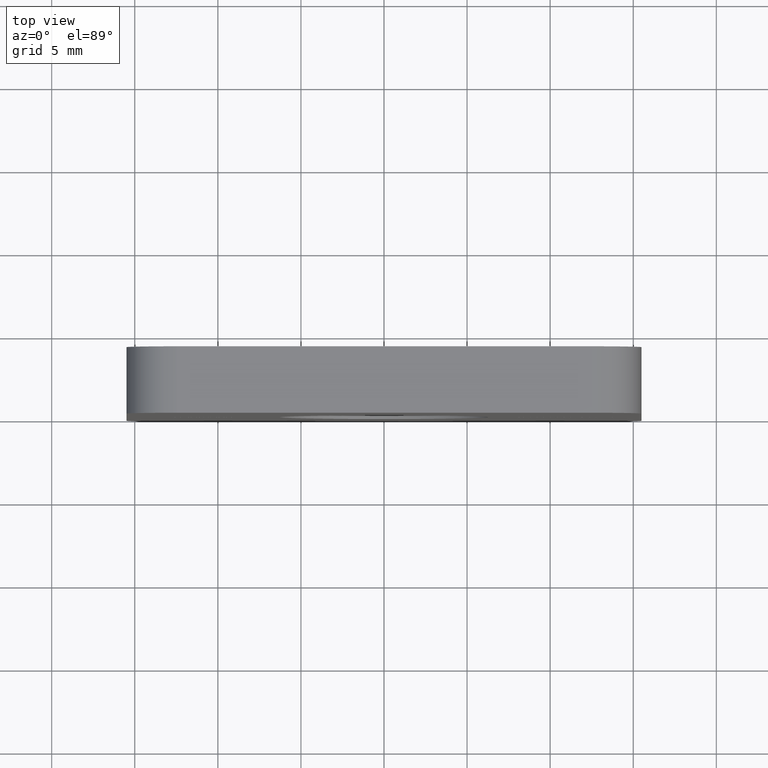
[diagram: clean part render]
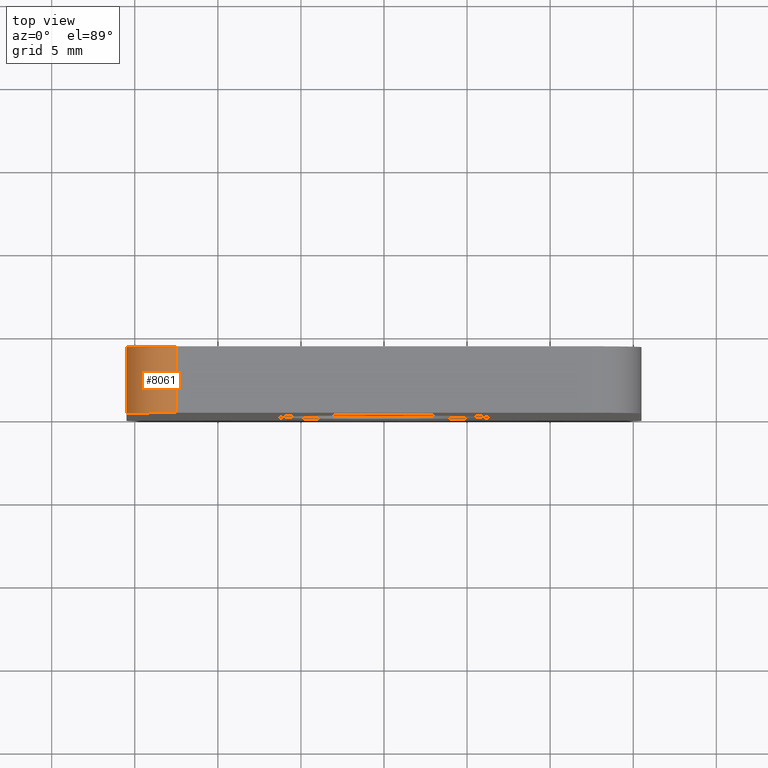
[diagram: same view with one face highlighted and labeled with its STEP entity id]
A machine part, top view. The second image highlights one B-rep face of the part: STEP entity #8061.
In plain terms, the highlighted cylindrical surface (partial cylindrical patch) has radius 3 mm, axis along (0, -1, 0).
Its self-contained STEP definition (entity closure, byte-faithful):
#221 = CARTESIAN_POINT ( 'NONE',  ( -12.49999999999999467, 0.000000000000000000, 12.50000000000000355 ) ) ;
#257 = DIRECTION ( 'NONE',  ( 0.000000000000000000, -1.000000000000000000, 0.000000000000000000 ) ) ;
#530 = DIRECTION ( 'NONE',  ( 0.000000000000000000, -1.000000000000000000, 0.000000000000000000 ) ) ;
#814 = VERTEX_POINT ( 'NONE', #11204 ) ;
#1193 = EDGE_CURVE ( 'NONE', #3713, #2626, #12044, .T. ) ;
#1730 = DIRECTION ( 'NONE',  ( 0.000000000000000000, 0.000000000000000000, -1.000000000000000000 ) ) ;
#1920 = ORIENTED_EDGE ( 'NONE', *, *, #8753, .F. ) ;
#2217 = CIRCLE ( 'NONE', #3493, 2.999999999999999112 ) ;
#2626 = VERTEX_POINT ( 'NONE', #3831 ) ;
#2765 = AXIS2_PLACEMENT_3D ( 'NONE', #221, #4574, #11462 ) ;
#2894 = CARTESIAN_POINT ( 'NONE',  ( -15.49999999999999467, 0.000000000000000000, 12.50000000000000355 ) ) ;
#3493 = AXIS2_PLACEMENT_3D ( 'NONE', #9642, #16653, #13959 ) ;
#3713 = VERTEX_POINT ( 'NONE', #16531 ) ;
#3831 = CARTESIAN_POINT ( 'NONE',  ( -12.49999999999999467, 0.000000000000000000, 15.50000000000000355 ) ) ;
#4390 = FACE_OUTER_BOUND ( 'NONE', #5096, .T. ) ;
#4574 = DIRECTION ( 'NONE',  ( -0.000000000000000000, -1.000000000000000000, -0.000000000000000000 ) ) ;
#5032 = CYLINDRICAL_SURFACE ( 'NONE', #8895, 2.999999999999999112 ) ;
#5096 = EDGE_LOOP ( 'NONE', ( #17438, #1920, #11554, #12773 ) ) ;
#5122 = EDGE_CURVE ( 'NONE', #2626, #7364, #9216, .T. ) ;
#7364 = VERTEX_POINT ( 'NONE', #2894 ) ;
#8061 = ADVANCED_FACE ( 'NONE', ( #4390 ), #5032, .T. ) ;
#8753 = EDGE_CURVE ( 'NONE', #7364, #814, #10916, .T. ) ;
#8762 = CARTESIAN_POINT ( 'NONE',  ( -15.49999999999999467, 4.000000000000000000, 12.50000000000000355 ) ) ;
#8895 = AXIS2_PLACEMENT_3D ( 'NONE', #12893, #257, #1730 ) ;
#9216 = CIRCLE ( 'NONE', #2765, 2.999999999999999112 ) ;
#9642 = CARTESIAN_POINT ( 'NONE',  ( -12.49999999999999467, 4.000000000000000000, 12.50000000000000355 ) ) ;
#10211 = DIRECTION ( 'NONE',  ( -0.000000000000000000, 1.000000000000000000, -0.000000000000000000 ) ) ;
#10916 = LINE ( 'NONE', #8762, #13547 ) ;
#11204 = CARTESIAN_POINT ( 'NONE',  ( -15.49999999999999467, 4.000000000000000000, 12.50000000000000355 ) ) ;
#11462 = DIRECTION ( 'NONE',  ( 0.000000000000000000, 0.000000000000000000, 1.000000000000000000 ) ) ;
#11554 = ORIENTED_EDGE ( 'NONE', *, *, #5122, .F. ) ;
#12044 = LINE ( 'NONE', #14545, #13360 ) ;
#12773 = ORIENTED_EDGE ( 'NONE', *, *, #1193, .F. ) ;
#12893 = CARTESIAN_POINT ( 'NONE',  ( -12.49999999999999467, 4.000000000000000000, 12.50000000000000355 ) ) ;
#13360 = VECTOR ( 'NONE', #530, 1000.000000000000000 ) ;
#13547 = VECTOR ( 'NONE', #10211, 1000.000000000000000 ) ;
#13959 = DIRECTION ( 'NONE',  ( 0.000000000000000000, 0.000000000000000000, 1.000000000000000000 ) ) ;
#14545 = CARTESIAN_POINT ( 'NONE',  ( -12.49999999999999467, 4.000000000000000000, 15.50000000000000355 ) ) ;
#16531 = CARTESIAN_POINT ( 'NONE',  ( -12.49999999999999467, 4.000000000000000000, 15.50000000000000355 ) ) ;
#16653 = DIRECTION ( 'NONE',  ( 0.000000000000000000, 1.000000000000000000, 0.000000000000000000 ) ) ;
#17413 = EDGE_CURVE ( 'NONE', #814, #3713, #2217, .T. ) ;
#17438 = ORIENTED_EDGE ( 'NONE', *, *, #17413, .F. ) ;